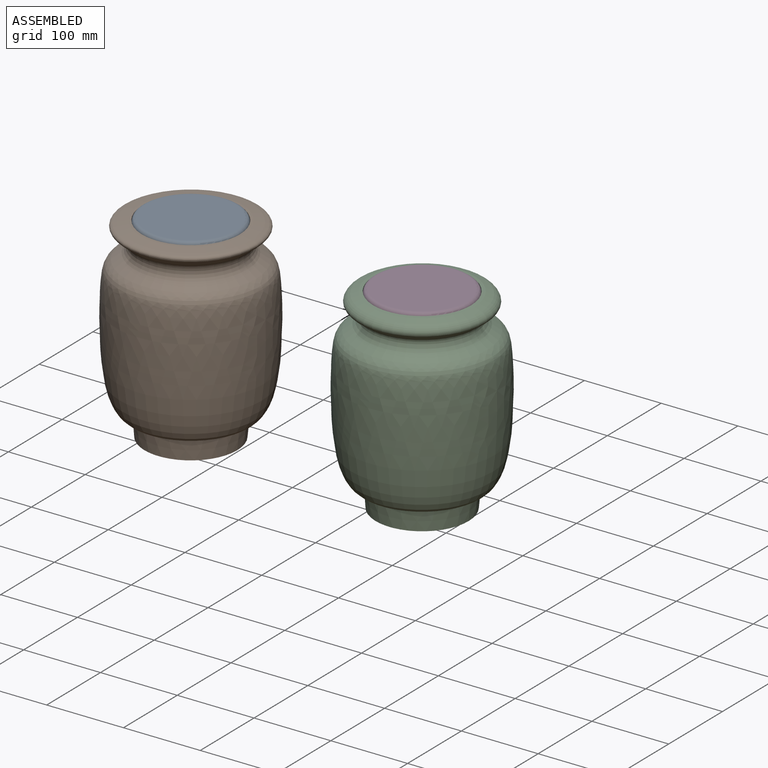
[diagram: assembled view]
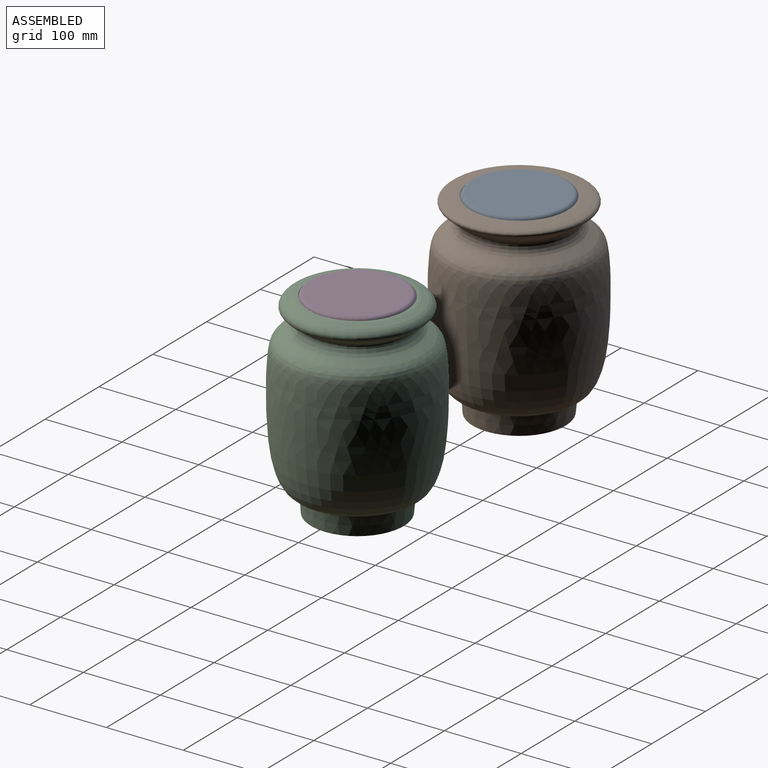
[diagram: assembled view, second angle]
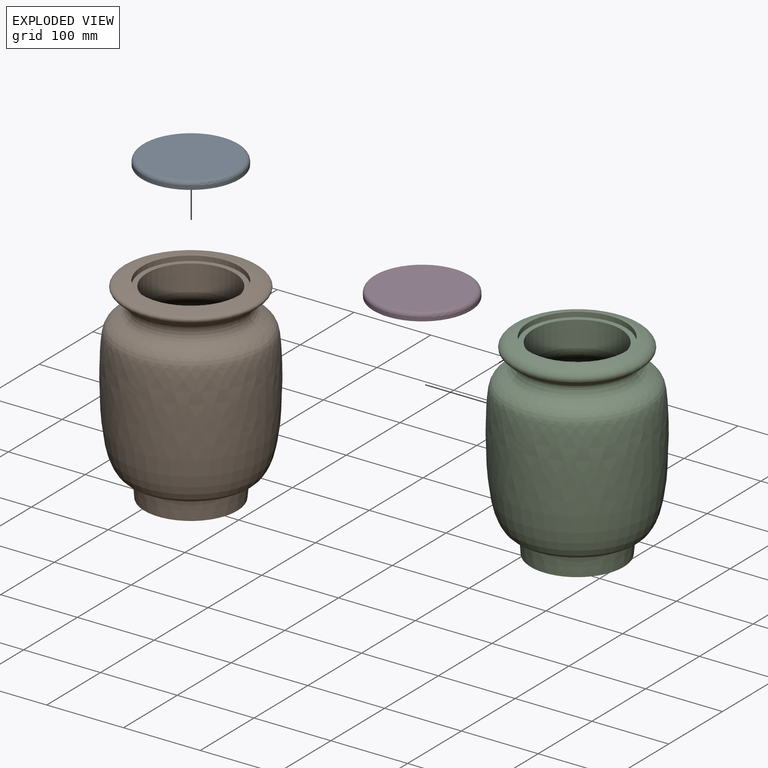
[diagram: exploded view]
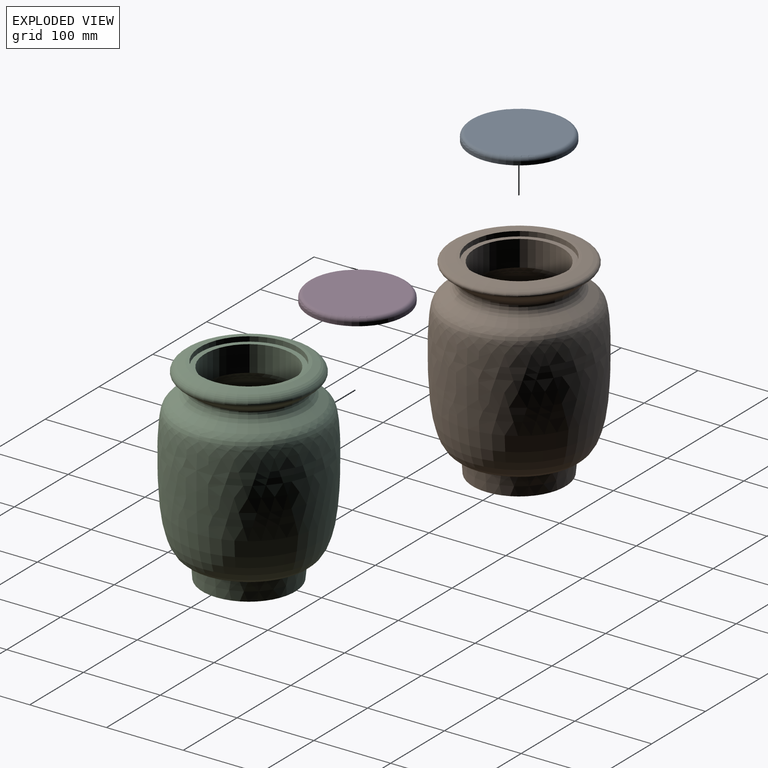
[diagram: exploded view, second angle]
ASSEMBLY  parts=4 mates=2
PART A: 4 faces, bbox 136.9x136.9x9.7 mm
  f0: cylinder r=63.25mm len=126.49mm, axis (0,0,-1), area 1816.9mm2, adj f2,f3
  f1: plane 116.33x116.33mm, normal (0,0,1), area 10628.9mm2, adj f3
  f2: plane 126.49x126.49mm, normal (0,0,-1), area 12566.5mm2, adj f0
  f3: torus R=58.17mm, axis (0,0,1), area 3078.4mm2, adj f0,f1
PART B: 11 faces, bbox 195.4x195.4x254.7 mm
  f0: cylinder r=57.15mm len=114.29mm, axis (0,0,1), area 12105.9mm2, adj f1,f10
  f1: plane 126.99x126.99mm, normal (0,0,1), area 2406.7mm2, adj f0,f2
  f2: cylinder r=63.5mm len=126.99mm, axis (0,0,1), area 2533.4mm2, adj f1,f3
  f3: revolved ~174.39x174.39mm, area 38811.7mm2, adj f2,f4
  f4: revolved ~195.38x195.38mm, area 115827.4mm2, adj f3,f5
  f5: cone r=60.45mm half-angle=5.8deg, axis (0,0,1), area 9688.4mm2, adj f4,f6
  f6: plane 120.9x120.9mm, normal (0,0,-1), area 3373.5mm2, adj f5,f7
  f7: cylinder r=50.8mm len=101.6mm, axis (0,0,1), area 4053.7mm2, adj f6,f8
  f8: plane 101.6x101.6mm, normal (0,0,-1), area 3547mm2, adj f7,f9
  f9: cylinder r=38.1mm len=76.2mm, axis (0,0,1), area 4560.4mm2, adj f8,f10
  f10: revolved ~182.92x165.72mm, area 100826.5mm2, adj f0,f9
PART C: 11 faces, bbox 195.4x195.4x254.7 mm
  f0: cylinder r=57.15mm len=114.29mm, axis (0,0,1), area 12105.9mm2, adj f1,f10
  f1: plane 126.99x126.99mm, normal (0,0,1), area 2406.7mm2, adj f0,f2
  f2: cylinder r=63.5mm len=126.99mm, axis (0,0,1), area 2533.4mm2, adj f1,f3
  f3: revolved ~170.94x170.94mm, area 35882.9mm2, adj f2,f4
  f4: revolved ~195.38x195.38mm, area 115827.4mm2, adj f3,f5
  f5: cone r=60.45mm half-angle=5.8deg, axis (0,0,1), area 9688.4mm2, adj f4,f6
  f6: plane 120.9x120.9mm, normal (0,0,-1), area 3373.5mm2, adj f5,f7
  f7: cylinder r=50.8mm len=101.6mm, axis (0,0,1), area 4053.7mm2, adj f6,f8
  f8: plane 101.6x101.6mm, normal (0,0,-1), area 3547mm2, adj f7,f9
  f9: cylinder r=38.1mm len=76.2mm, axis (0,0,1), area 4560.4mm2, adj f8,f10
  f10: revolved ~182.92x165.72mm, area 100826.5mm2, adj f0,f9
PART D: same geometry as A
PLACE A t=(-164.08,2.45,215.42)mm
PLACE B t=(-164.08,2.45,-32.97)mm
PLACE C t=(137.03,2.66,-35.97)mm
PLACE D t=(137.03,2.66,212.42)mm
MATE fastened A.f0 <-> B.f0  axis (0,0,-1) through (-164.08,2.45,215.42)mm
MATE fastened D.f0 <-> C.f0  axis (0,0,-1) through (137.03,2.66,212.42)mm
